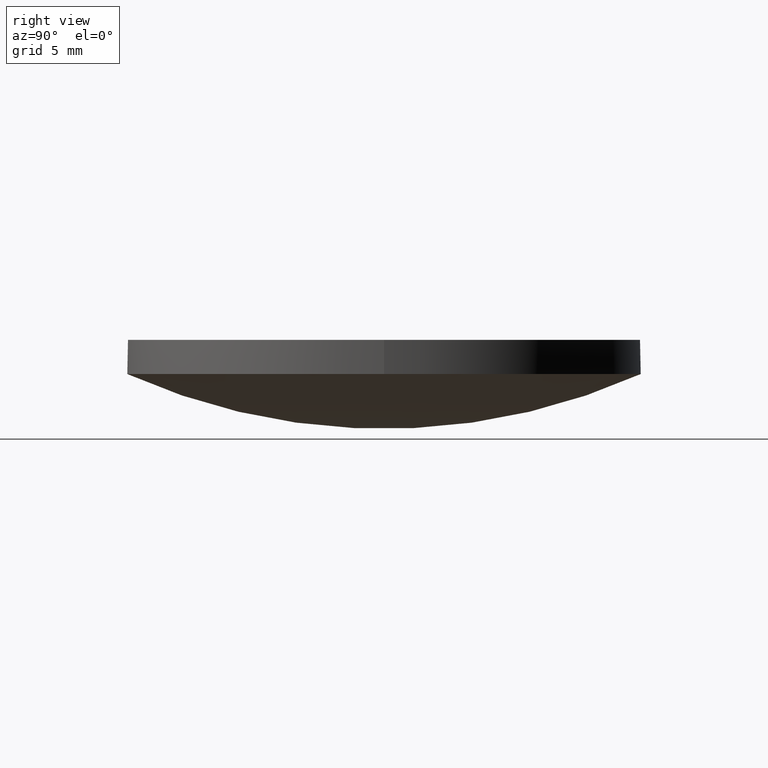
[diagram: clean part render]
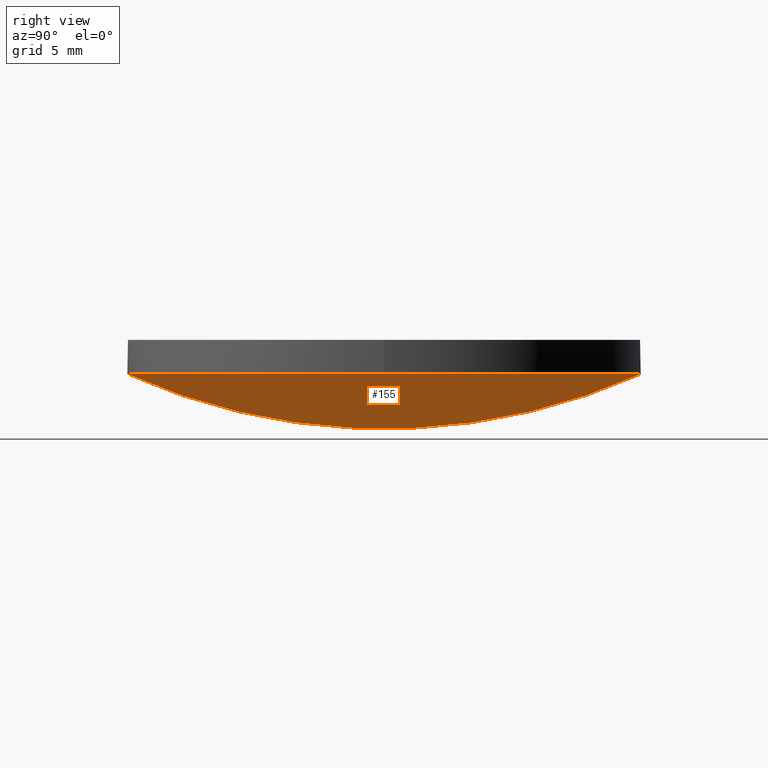
[diagram: same view with one face highlighted and labeled with its STEP entity id]
A machine part, right view. The second image highlights one B-rep face of the part: STEP entity #155.
In plain terms, the highlighted face is a freeform B-spline surface patch.
Its self-contained STEP definition (entity closure, byte-faithful):
#19 = CARTESIAN_POINT ( 'NONE',  ( 4.559414760900651200, 4.551507654516051100, -0.9830071144021402800 ) ) ;
#20 = CARTESIAN_POINT ( 'NONE',  ( 4.559414760900649500, -4.551507654516049300, -0.9830071144021426100 ) ) ;
#24 = EDGE_CURVE ( 'NONE', #171, #135, #214, .T. ) ;
#29 = ORIENTED_EDGE ( 'NONE', *, *, #175, .T. ) ;
#35 = CARTESIAN_POINT ( 'NONE',  ( 11.63325800064605400, 12.84315335437655900, 5.270916453259492800 ) ) ;
#37 = CARTESIAN_POINT ( 'NONE',  ( 11.63325800064604600, -12.84315335437656300, 5.270916453259489200 ) ) ;
#41 =( BOUNDED_SURFACE ( )  B_SPLINE_SURFACE ( 3, 3, ( 
 ( #196, #112, #179, #37 ),
 ( #178, #20, #73, #216 ),
 ( #57, #19, #93, #195 ),
 ( #92, #234, #148, #35 ) ),
 .UNSPECIFIED., .F., .F., .T. ) 
 B_SPLINE_SURFACE_WITH_KNOTS ( ( 4, 4 ),
 ( 4, 4 ),
 ( 0.0000000000000000000, 1.000000000000000000 ),
 ( 0.0000000000000000000, 1.000000000000000000 ),
 .UNSPECIFIED. ) 
 GEOMETRIC_REPRESENTATION_ITEM ( )  RATIONAL_B_SPLINE_SURFACE ( (
 ( 1.000000000000000000, 0.9851523356659553900, 0.9851523356659553900, 1.000000000000000000),
 ( 0.9405786923982915000, 0.9266132956938071300, 0.9266132956938071300, 0.9405786923982915000),
 ( 0.9405786923982915000, 0.9266132956938071300, 0.9266132956938071300, 0.9405786923982915000),
 ( 1.000000000000000000, 0.9851523356659553900, 0.9851523356659553900, 1.000000000000000000) ) ) 
 REPRESENTATION_ITEM ( '' )  SURFACE ( )  );
#54 = CARTESIAN_POINT ( 'NONE',  ( 4.996003610813200500E-016, 2.442490654175340100E-015, 2.709361147626399900 ) ) ;
#57 = CARTESIAN_POINT ( 'NONE',  ( 9.265560802488689400E-015, 4.551507654516052000, -0.9830071144021401700 ) ) ;
#67 = DIRECTION ( 'NONE',  ( -0.0000000000000000000, -0.0000000000000000000, -1.000000000000000000 ) ) ;
#71 = DIRECTION ( 'NONE',  ( -0.0000000000000000000, -0.0000000000000000000, -1.000000000000000000 ) ) ;
#73 = CARTESIAN_POINT ( 'NONE',  ( 9.017284531906982500, -4.551507654516050200, -0.02610583074398489500 ) ) ;
#90 = DIRECTION ( 'NONE',  ( 1.000000000000000000, 0.0000000000000000000, 0.0000000000000000000 ) ) ;
#92 = CARTESIAN_POINT ( 'NONE',  ( 1.107271206032240700E-014, 12.84315335437656300, 2.773786638847756300 ) ) ;
#93 = CARTESIAN_POINT ( 'NONE',  ( 9.017284531906984300, 4.551507654516051100, -0.02610583074398207400 ) ) ;
#105 = ORIENTED_EDGE ( 'NONE', *, *, #24, .T. ) ;
#107 = DIRECTION ( 'NONE',  ( -2.334397171259000300E-016, -1.000000000000000000, -2.229721691486898600E-016 ) ) ;
#110 = CIRCLE ( 'NONE', #126, 12.69999999999999900 ) ;
#112 = CARTESIAN_POINT ( 'NONE',  ( 4.025857862907047400, -12.84315335437656100, 2.773786638847752300 ) ) ;
#121 = EDGE_LOOP ( 'NONE', ( #154, #105, #29 ) ) ;
#126 = AXIS2_PLACEMENT_3D ( 'NONE', #54, #67, #235 ) ;
#128 = CARTESIAN_POINT ( 'NONE',  ( 12.69999999999999900, 2.442490654175340100E-015, 2.709361147626399900 ) ) ;
#134 = AXIS2_PLACEMENT_3D ( 'NONE', #209, #71, #90 ) ;
#135 = VERTEX_POINT ( 'NONE', #142 ) ;
#142 = CARTESIAN_POINT ( 'NONE',  ( 1.104149714745860900E-014, 12.69999999999999600, 2.709361147626402100 ) ) ;
#148 = CARTESIAN_POINT ( 'NONE',  ( 7.962053846506566200, 12.84315335437656100, 3.618708357722058900 ) ) ;
#154 = ORIENTED_EDGE ( 'NONE', *, *, #221, .T. ) ;
#155 = ADVANCED_FACE ( 'NONE', ( #160 ), #41, .T. ) ;
#160 = FACE_OUTER_BOUND ( 'NONE', #121, .T. ) ;
#171 = VERTEX_POINT ( 'NONE', #212 ) ;
#175 = EDGE_CURVE ( 'NONE', #135, #225, #110, .T. ) ;
#178 = CARTESIAN_POINT ( 'NONE',  ( 7.140555483755498000E-015, -4.551507654516045800, -0.9830071144021429500 ) ) ;
#179 = CARTESIAN_POINT ( 'NONE',  ( 7.962053846506560000, -12.84315335437656100, 3.618708357722055300 ) ) ;
#195 = CARTESIAN_POINT ( 'NONE',  ( 13.17504245100463900, 4.551507654516048400, 1.845073489390613800 ) ) ;
#196 = CARTESIAN_POINT ( 'NONE',  ( 5.076507888221970300E-015, -12.84315335437655900, 2.773786638847752800 ) ) ;
#203 = CIRCLE ( 'NONE', #134, 12.69999999999999900 ) ;
#205 = CARTESIAN_POINT ( 'NONE',  ( 7.105427357601000300E-015, 0.0000000000000000000, 31.12000000000000100 ) ) ;
#209 = CARTESIAN_POINT ( 'NONE',  ( 4.996003610813200500E-016, 2.442490654175340100E-015, 2.709361147626399900 ) ) ;
#212 = CARTESIAN_POINT ( 'NONE',  ( 5.112128332460749800E-015, -12.69999999999999600, 2.709361147626402100 ) ) ;
#214 = CIRCLE ( 'NONE', #224, 31.12000000000000100 ) ;
#216 = CARTESIAN_POINT ( 'NONE',  ( 13.17504245100463800, -4.551507654516050200, 1.845073489390611600 ) ) ;
#221 = EDGE_CURVE ( 'NONE', #225, #171, #203, .T. ) ;
#224 = AXIS2_PLACEMENT_3D ( 'NONE', #205, #226, #107 ) ;
#225 = VERTEX_POINT ( 'NONE', #128 ) ;
#226 = DIRECTION ( 'NONE',  ( 1.000000000000000000, -2.334397171258999800E-016, 3.419090247868619700E-017 ) ) ;
#234 = CARTESIAN_POINT ( 'NONE',  ( 4.025857862907053600, 12.84315335437656100, 2.773786638847755900 ) ) ;
#235 = DIRECTION ( 'NONE',  ( 1.000000000000000000, 8.881784197001252300E-016, 0.0000000000000000000 ) ) ;